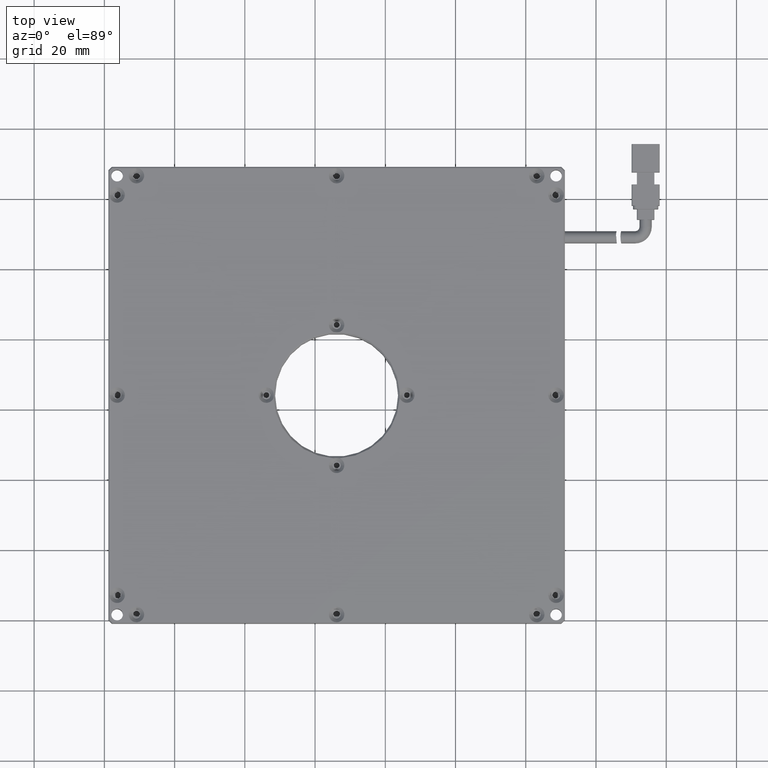
[diagram: clean part render]
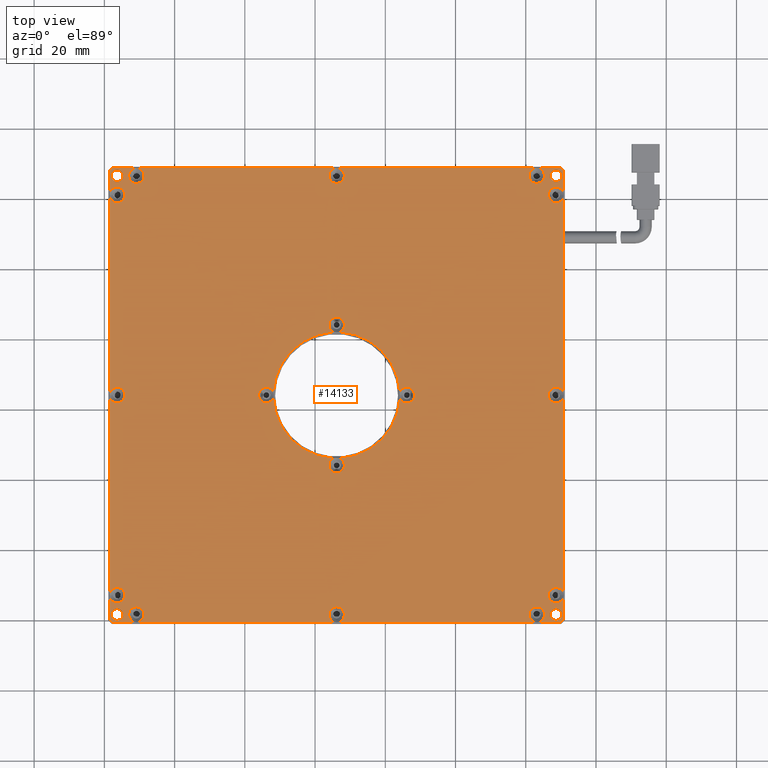
[diagram: same view with one face highlighted and labeled with its STEP entity id]
A machine part, top view. The second image highlights one B-rep face of the part: STEP entity #14133.
In plain terms, the highlighted planar face has unit normal (0, 0, -1).
Its self-contained STEP definition (entity closure, byte-faithful):
#44 = CARTESIAN_POINT ( 'NONE',  ( 46.12907407407409700, 24.05944444444465400, 6.000000000021374000 ) ) ;
#73 = CARTESIAN_POINT ( 'NONE',  ( 90.82907407407410000, 89.05944444444446600, 6.000000000000000000 ) ) ;
#131 = DIRECTION ( 'NONE',  ( 1.000000000000000000, 0.0000000000000000000, 0.0000000000000000000 ) ) ;
#195 = CARTESIAN_POINT ( 'NONE',  ( 26.99830304270746200, 42.03844444444838000, 5.999999999985517400 ) ) ;
#212 = ORIENTED_EDGE ( 'NONE', *, *, #18257, .F. ) ;
#327 = AXIS2_PLACEMENT_3D ( 'NONE', #15321, #12218, #4466 ) ;
#341 = CARTESIAN_POINT ( 'NONE',  ( 86.97907407407410600, -38.44055555555552700, 6.000000000000000000 ) ) ;
#402 = CIRCLE ( 'NONE', #10309, 2.199999999957083400 ) ;
#439 = CARTESIAN_POINT ( 'NONE',  ( 48.32907407412666600, 24.05944444444465400, 6.000000000021374000 ) ) ;
#515 = LINE ( 'NONE', #3141, #3237 ) ;
#592 = CARTESIAN_POINT ( 'NONE',  ( -36.37092592592590300, 81.05944444444446600, 5.999999999964530600 ) ) ;
#664 = AXIS2_PLACEMENT_3D ( 'NONE', #1958, #17604, #13360 ) ;
#676 = VERTEX_POINT ( 'NONE', #5103 ) ;
#763 = CARTESIAN_POINT ( 'NONE',  ( -30.87092592592590600, 88.75944444438516700, 6.000000000021374000 ) ) ;
#767 = DIRECTION ( 'NONE',  ( 0.0000000000000000000, -0.0000000000000000000, 1.000000000000000000 ) ) ;
#798 = FACE_BOUND ( 'NONE', #7709, .T. ) ;
#878 = VERTEX_POINT ( 'NONE', #10504 ) ;
#907 = DIRECTION ( 'NONE',  ( 1.000000000000000000, 0.0000000000000000000, 0.0000000000000000000 ) ) ;
#921 = DIRECTION ( 'NONE',  ( 0.0000000000000000000, -1.000000000000000000, 0.0000000000000000000 ) ) ;
#984 = EDGE_CURVE ( 'NONE', #11099, #12350, #14890, .T. ) ;
#1033 = ORIENTED_EDGE ( 'NONE', *, *, #11992, .T. ) ;
#1051 = VERTEX_POINT ( 'NONE', #14354 ) ;
#1139 = DIRECTION ( 'NONE',  ( 1.000000000000000000, 0.0000000000000000000, 0.0000000000000000000 ) ) ;
#1146 = EDGE_CURVE ( 'NONE', #19698, #13522, #402, .T. ) ;
#1160 = CIRCLE ( 'NONE', #13732, 2.200000000013913000 ) ;
#1288 = DIRECTION ( 'NONE',  ( 0.0000000000000000000, 0.0000000000000000000, -1.000000000000000000 ) ) ;
#1408 = DIRECTION ( 'NONE',  ( 0.0000000000000000000, -0.0000000000000000000, 1.000000000000000000 ) ) ;
#1422 = EDGE_CURVE ( 'NONE', #2665, #8212, #10679, .T. ) ;
#1428 = DIRECTION ( 'NONE',  ( 0.0000000000000000000, 0.0000000000000000000, -1.000000000000000000 ) ) ;
#1461 = VERTEX_POINT ( 'NONE', #6990 ) ;
#1539 = CARTESIAN_POINT ( 'NONE',  ( -38.87092592592590300, 89.05944444444446600, 6.000000000000000000 ) ) ;
#1558 = CARTESIAN_POINT ( 'NONE',  ( 8.150074074061535600, 23.19021547579281500, 6.000000000020566700 ) ) ;
#1577 = DIRECTION ( 'NONE',  ( 0.0000000000000000000, -0.0000000000000000000, 1.000000000000000000 ) ) ;
#1721 = CIRCLE ( 'NONE', #16930, 2.199999999957055900 ) ;
#1744 = DIRECTION ( 'NONE',  ( 0.0000000000000000000, 0.0000000000000000000, -1.000000000000000000 ) ) ;
#1793 = EDGE_CURVE ( 'NONE', #16733, #878, #1160, .T. ) ;
#1857 = VECTOR ( 'NONE', #19759, 1000.000000000000000 ) ;
#1958 = CARTESIAN_POINT ( 'NONE',  ( -36.37092592592590300, -32.94055555555552700, 5.999999999964530600 ) ) ;
#2014 = EDGE_LOOP ( 'NONE', ( #2203, #8863 ) ) ;
#2072 = CARTESIAN_POINT ( 'NONE',  ( -37.74666185721397900, 88.75944444444446900, 6.000000000000000000 ) ) ;
#2102 = DIRECTION ( 'NONE',  ( 1.000000000000000000, 0.0000000000000000000, 0.0000000000000000000 ) ) ;
#2104 = EDGE_CURVE ( 'NONE', #1051, #19698, #13082, .T. ) ;
#2127 = CIRCLE ( 'NONE', #3018, 2.199999999957069600 ) ;
#2203 = ORIENTED_EDGE ( 'NONE', *, *, #2823, .F. ) ;
#2205 = VERTEX_POINT ( 'NONE', #3459 ) ;
#2225 = DIRECTION ( 'NONE',  ( 0.0000000000000000000, -1.000000000000000000, 0.0000000000000000000 ) ) ;
#2236 = CARTESIAN_POINT ( 'NONE',  ( 26.12907407407409700, 88.75944444440153800, 5.999999999964530600 ) ) ;
#2304 = CARTESIAN_POINT ( 'NONE',  ( 85.32907407410438300, -38.44055555555553400, 6.000000000078217400 ) ) ;
#2315 = CARTESIAN_POINT ( 'NONE',  ( 26.12907407407409700, -38.44055555555552700, 5.999999999964530600 ) ) ;
#2348 = EDGE_CURVE ( 'NONE', #17894, #3020, #8909, .T. ) ;
#2350 = ORIENTED_EDGE ( 'NONE', *, *, #14489, .F. ) ;
#2425 = CARTESIAN_POINT ( 'NONE',  ( 26.12907407407409700, 24.05944444444445900, 6.000000000000005300 ) ) ;
#2451 = DIRECTION ( 'NONE',  ( 1.000000000000000000, 0.0000000000000000000, 0.0000000000000000000 ) ) ;
#2505 = EDGE_CURVE ( 'NONE', #17593, #5359, #6711, .T. ) ;
#2534 = DIRECTION ( 'NONE',  ( 1.000000000000000000, 0.0000000000000000000, 0.0000000000000000000 ) ) ;
#2557 = AXIS2_PLACEMENT_3D ( 'NONE', #18249, #15110, #5783 ) ;
#2605 = VERTEX_POINT ( 'NONE', #439 ) ;
#2637 = CARTESIAN_POINT ( 'NONE',  ( 83.12907407407409700, 86.55944444444446600, 6.000000000078217400 ) ) ;
#2638 = CIRCLE ( 'NONE', #2557, 2.199999999940693800 ) ;
#2651 = AXIS2_PLACEMENT_3D ( 'NONE', #14332, #9551, #15849 ) ;
#2665 = VERTEX_POINT ( 'NONE', #5685 ) ;
#2823 = EDGE_CURVE ( 'NONE', #4219, #18227, #7433, .T. ) ;
#2827 = AXIS2_PLACEMENT_3D ( 'NONE', #8787, #19771, #15285 ) ;
#2923 = EDGE_CURVE ( 'NONE', #10516, #9335, #5014, .T. ) ;
#2931 = CIRCLE ( 'NONE', #19161, 2.199999999957055900 ) ;
#2982 = CARTESIAN_POINT ( 'NONE',  ( 6.129074074074106100, 24.05944444444440600, 6.000000000021374000 ) ) ;
#3011 = ORIENTED_EDGE ( 'NONE', *, *, #18324, .T. ) ;
#3018 = AXIS2_PLACEMENT_3D ( 'NONE', #17781, #8352, #16210 ) ;
#3020 = VERTEX_POINT ( 'NONE', #8503 ) ;
#3059 = CARTESIAN_POINT ( 'NONE',  ( 6.129074074074106100, 24.05944444444440600, 6.000000000021374000 ) ) ;
#3068 = DIRECTION ( 'NONE',  ( 1.000000000000000000, 0.0000000000000000000, 0.0000000000000000000 ) ) ;
#3070 = ORIENTED_EDGE ( 'NONE', *, *, #17807, .T. ) ;
#3110 = VERTEX_POINT ( 'NONE', #3796 ) ;
#3141 = CARTESIAN_POINT ( 'NONE',  ( -38.57092592592590600, 89.05944444444446600, 6.000000000000000000 ) ) ;
#3145 = CARTESIAN_POINT ( 'NONE',  ( 90.00481000536221600, 88.75944444444446900, 6.000000000000000000 ) ) ;
#3237 = VECTOR ( 'NONE', #14264, 1000.000000000000000 ) ;
#3292 = CARTESIAN_POINT ( 'NONE',  ( -38.57092592592590600, -39.81629148684361800, 6.000000000000000000 ) ) ;
#3434 = DIRECTION ( 'NONE',  ( 0.0000000000000000000, -0.0000000000000000000, 1.000000000000000000 ) ) ;
#3444 = VERTEX_POINT ( 'NONE', #20008 ) ;
#3459 = CARTESIAN_POINT ( 'NONE',  ( 86.42907407411702500, -32.94055555555552700, 6.000000000021374000 ) ) ;
#3483 = AXIS2_PLACEMENT_3D ( 'NONE', #2315, #11662, #10269 ) ;
#3493 = ORIENTED_EDGE ( 'NONE', *, *, #17810, .F. ) ;
#3508 = FACE_BOUND ( 'NONE', #6188, .T. ) ;
#3539 = CARTESIAN_POINT ( 'NONE',  ( -30.87092592592590600, -36.24055555561483300, 6.000000000021374000 ) ) ;
#3615 = CARTESIAN_POINT ( 'NONE',  ( 88.62907407407409700, -38.44055555555552700, 6.000000000000000000 ) ) ;
#3620 = ORIENTED_EDGE ( 'NONE', *, *, #10392, .T. ) ;
#3689 = VECTOR ( 'NONE', #9084, 1000.000000000000100 ) ;
#3758 = CIRCLE ( 'NONE', #9826, 2.199999999940700900 ) ;
#3795 = DIRECTION ( 'NONE',  ( 1.000000000000000000, 0.0000000000000000000, 0.0000000000000000000 ) ) ;
#3796 = CARTESIAN_POINT ( 'NONE',  ( 80.92907407404379700, 86.55944444444446600, 6.000000000078217400 ) ) ;
#3818 = ORIENTED_EDGE ( 'NONE', *, *, #20177, .F. ) ;
#3886 = CARTESIAN_POINT ( 'NONE',  ( -37.74666185721396500, -40.64055555555553700, 6.000000000000000000 ) ) ;
#3927 = VERTEX_POINT ( 'NONE', #15563 ) ;
#4000 = EDGE_CURVE ( 'NONE', #14306, #2205, #6378, .T. ) ;
#4002 = FACE_BOUND ( 'NONE', #6930, .T. ) ;
#4037 = VERTEX_POINT ( 'NONE', #17189 ) ;
#4154 = AXIS2_PLACEMENT_3D ( 'NONE', #14478, #16115, #8263 ) ;
#4178 = EDGE_CURVE ( 'NONE', #8212, #19584, #2931, .T. ) ;
#4219 = VERTEX_POINT ( 'NONE', #2304 ) ;
#4224 = CARTESIAN_POINT ( 'NONE',  ( -30.87092592592590600, -38.44055555555553400, 6.000000000021374000 ) ) ;
#4438 = CIRCLE ( 'NONE', #13821, 2.199999999957055900 ) ;
#4466 = DIRECTION ( 'NONE',  ( 1.000000000000000000, 0.0000000000000000000, 0.0000000000000000000 ) ) ;
#4468 = DIRECTION ( 'NONE',  ( 0.0000000000000000000, 4.928191693466765400E-017, 1.000000000000000000 ) ) ;
#4477 = DIRECTION ( 'NONE',  ( 0.0000000000000000000, -1.000000000000000000, 0.0000000000000000000 ) ) ;
#4509 = AXIS2_PLACEMENT_3D ( 'NONE', #10056, #8633, #907 ) ;
#4542 = VERTEX_POINT ( 'NONE', #13196 ) ;
#4544 = DIRECTION ( 'NONE',  ( 0.0000000000000000000, 0.0000000000000000000, -1.000000000000000000 ) ) ;
#4612 = DIRECTION ( 'NONE',  ( 0.0000000000000000000, -1.000000000000000000, 0.0000000000000000000 ) ) ;
#4657 = EDGE_CURVE ( 'NONE', #11835, #14467, #2638, .T. ) ;
#4780 = AXIS2_PLACEMENT_3D ( 'NONE', #14043, #18821, #131 ) ;
#4785 = ORIENTED_EDGE ( 'NONE', *, *, #5810, .T. ) ;
#4789 = AXIS2_PLACEMENT_3D ( 'NONE', #592, #19493, #11606 ) ;
#4808 = CARTESIAN_POINT ( 'NONE',  ( 90.82907407407410000, -39.81629148684358200, 6.000000000000001800 ) ) ;
#4829 = ORIENTED_EDGE ( 'NONE', *, *, #13692, .F. ) ;
#4842 = CIRCLE ( 'NONE', #15008, 1.649999999999991700 ) ;
#4884 = ORIENTED_EDGE ( 'NONE', *, *, #13584, .T. ) ;
#4986 = FACE_BOUND ( 'NONE', #2014, .T. ) ;
#5014 = CIRCLE ( 'NONE', #13382, 2.199999999975249300 ) ;
#5038 = ORIENTED_EDGE ( 'NONE', *, *, #14768, .T. ) ;
#5045 = CARTESIAN_POINT ( 'NONE',  ( -36.37092592592590300, -38.44055555555552700, 6.000000000000000000 ) ) ;
#5080 = EDGE_CURVE ( 'NONE', #3927, #19841, #16072, .T. ) ;
#5103 = CARTESIAN_POINT ( 'NONE',  ( -38.57092592593981800, 24.05944444444447300, 5.999999999964530600 ) ) ;
#5177 = CARTESIAN_POINT ( 'NONE',  ( 6.129074074074106100, 26.25944444441965300, 6.000000000021374000 ) ) ;
#5302 = EDGE_LOOP ( 'NONE', ( #14071, #19507 ) ) ;
#5315 = DIRECTION ( 'NONE',  ( 0.0000000000000000000, -0.0000000000000000000, 1.000000000000000000 ) ) ;
#5359 = VERTEX_POINT ( 'NONE', #15504 ) ;
#5380 = ORIENTED_EDGE ( 'NONE', *, *, #15955, .T. ) ;
#5594 = EDGE_CURVE ( 'NONE', #14889, #13468, #10641, .T. ) ;
#5685 = CARTESIAN_POINT ( 'NONE',  ( 44.10807407406386500, 24.92867341319313800, 6.000000000002483300 ) ) ;
#5704 = DIRECTION ( 'NONE',  ( 0.0000000000000000000, -0.0000000000000000000, 1.000000000000000000 ) ) ;
#5734 = ORIENTED_EDGE ( 'NONE', *, *, #2505, .F. ) ;
#5737 = CIRCLE ( 'NONE', #10861, 2.199999999975249300 ) ;
#5744 = CARTESIAN_POINT ( 'NONE',  ( 83.12907407407409700, -38.44055555555553400, 6.000000000078217400 ) ) ;
#5754 = AXIS2_PLACEMENT_3D ( 'NONE', #8257, #14347, #15980 ) ;
#5783 = DIRECTION ( 'NONE',  ( 0.0000000000000000000, -1.000000000000000000, 0.0000000000000000000 ) ) ;
#5795 = CARTESIAN_POINT ( 'NONE',  ( -30.87092592592590600, 86.55944444444446600, 6.000000000021374000 ) ) ;
#5804 = ORIENTED_EDGE ( 'NONE', *, *, #20037, .F. ) ;
#5810 = EDGE_CURVE ( 'NONE', #14725, #14889, #16247, .T. ) ;
#5811 = DIRECTION ( 'NONE',  ( 0.0000000000000000000, -0.0000000000000000000, 1.000000000000000000 ) ) ;
#5831 = ORIENTED_EDGE ( 'NONE', *, *, #1146, .F. ) ;
#5843 = CARTESIAN_POINT ( 'NONE',  ( -34.72092592592591100, 86.55944444444446600, 6.000000000000000000 ) ) ;
#5910 = CIRCLE ( 'NONE', #4509, 2.200000000052562600 ) ;
#5913 = VERTEX_POINT ( 'NONE', #341 ) ;
#5921 = DIRECTION ( 'NONE',  ( 0.0000000000000000000, -0.0000000000000000000, 1.000000000000000000 ) ) ;
#5931 = VERTEX_POINT ( 'NONE', #9791 ) ;
#5932 = CIRCLE ( 'NONE', #19881, 1.649999999999984800 ) ;
#5948 = ORIENTED_EDGE ( 'NONE', *, *, #1793, .F. ) ;
#5965 = EDGE_LOOP ( 'NONE', ( #14158, #6790 ) ) ;
#5971 = FACE_BOUND ( 'NONE', #16999, .T. ) ;
#5972 = CIRCLE ( 'NONE', #17210, 2.199999999957069600 ) ;
#6029 = DIRECTION ( 'NONE',  ( 1.000000000000000000, 0.0000000000000000000, 0.0000000000000000000 ) ) ;
#6035 = CARTESIAN_POINT ( 'NONE',  ( 88.62907407407409700, 24.05944444444447300, 6.000000000021374000 ) ) ;
#6085 = ORIENTED_EDGE ( 'NONE', *, *, #15269, .F. ) ;
#6135 = DIRECTION ( 'NONE',  ( 0.0000000000000000000, 0.0000000000000000000, -1.000000000000000000 ) ) ;
#6188 = EDGE_LOOP ( 'NONE', ( #212, #13272 ) ) ;
#6218 = AXIS2_PLACEMENT_3D ( 'NONE', #13885, #4544, #12364 ) ;
#6251 = ORIENTED_EDGE ( 'NONE', *, *, #5080, .T. ) ;
#6355 = AXIS2_PLACEMENT_3D ( 'NONE', #44, #1577, #12368 ) ;
#6359 = EDGE_CURVE ( 'NONE', #14326, #7037, #13846, .T. ) ;
#6378 = CIRCLE ( 'NONE', #4780, 2.199999999957069600 ) ;
#6415 = VERTEX_POINT ( 'NONE', #3292 ) ;
#6437 = ORIENTED_EDGE ( 'NONE', *, *, #16340, .F. ) ;
#6438 = CARTESIAN_POINT ( 'NONE',  ( -38.57092592592590600, 87.93518037573255700, 6.000000000000000000 ) ) ;
#6515 = DIRECTION ( 'NONE',  ( 1.000000000000000000, -0.0000000000000000000, 0.0000000000000000000 ) ) ;
#6623 = EDGE_CURVE ( 'NONE', #17911, #14725, #17496, .T. ) ;
#6649 = CIRCLE ( 'NONE', #3483, 2.199999999957069600 ) ;
#6693 = ORIENTED_EDGE ( 'NONE', *, *, #15368, .F. ) ;
#6711 = CIRCLE ( 'NONE', #13893, 2.200000000013913000 ) ;
#6790 = ORIENTED_EDGE ( 'NONE', *, *, #2348, .F. ) ;
#6865 = CARTESIAN_POINT ( 'NONE',  ( -38.02092592592589400, -38.44055555555552700, 6.000000000000000000 ) ) ;
#6887 = VERTEX_POINT ( 'NONE', #19784 ) ;
#6888 = LINE ( 'NONE', #3886, #8825 ) ;
#6920 = DIRECTION ( 'NONE',  ( 1.000000000000000000, 0.0000000000000000000, 0.0000000000000000000 ) ) ;
#6930 = EDGE_LOOP ( 'NONE', ( #3493, #11212, #16612, #13558, #3818, #12340, #8751, #17455, #16459, #2350, #6085, #15625, #5831, #10424, #13331 ) ) ;
#6962 = CARTESIAN_POINT ( 'NONE',  ( 28.32907407403116600, 44.05944444444446600, 5.999999999964530600 ) ) ;
#6990 = CARTESIAN_POINT ( 'NONE',  ( 26.12907407407409700, -40.64055555551259900, 5.999999999964530600 ) ) ;
#6991 = CIRCLE ( 'NONE', #5754, 2.199999999940700900 ) ;
#7037 = VERTEX_POINT ( 'NONE', #2072 ) ;
#7070 = CIRCLE ( 'NONE', #2827, 18.00000000000000400 ) ;
#7074 = DIRECTION ( 'NONE',  ( 0.0000000000000000000, 0.0000000000000000000, -1.000000000000000000 ) ) ;
#7179 = AXIS2_PLACEMENT_3D ( 'NONE', #2637, #18534, #8896 ) ;
#7224 = VERTEX_POINT ( 'NONE', #6438 ) ;
#7227 = AXIS2_PLACEMENT_3D ( 'NONE', #10462, #18277, #16227 ) ;
#7303 = DIRECTION ( 'NONE',  ( 1.000000000000000000, 0.0000000000000000000, 0.0000000000000000000 ) ) ;
#7335 = CARTESIAN_POINT ( 'NONE',  ( 44.10807407406387900, 23.19021547569619900, 6.000000000002481600 ) ) ;
#7370 = CIRCLE ( 'NONE', #10104, 2.200000000030288800 ) ;
#7432 = CARTESIAN_POINT ( 'NONE',  ( -36.37092592592590300, 81.05944444444446600, 5.999999999964530600 ) ) ;
#7433 = CIRCLE ( 'NONE', #12324, 2.200000000030288800 ) ;
#7487 = CARTESIAN_POINT ( 'NONE',  ( 86.97907407407410600, 86.55944444444446600, 6.000000000000000000 ) ) ;
#7490 = DIRECTION ( 'NONE',  ( 0.0000000000000000000, -0.0000000000000000000, 1.000000000000000000 ) ) ;
#7512 = CARTESIAN_POINT ( 'NONE',  ( 26.12907407407409700, 24.05944444444445900, 6.000000000000001800 ) ) ;
#7545 = DIRECTION ( 'NONE',  ( 0.0000000000000000000, 4.928191693248779800E-017, 1.000000000000000000 ) ) ;
#7580 = AXIS2_PLACEMENT_3D ( 'NONE', #18563, #9193, #19971 ) ;
#7613 = CARTESIAN_POINT ( 'NONE',  ( -36.37092592592590300, 86.55944444444446600, 6.000000000000000000 ) ) ;
#7621 = CARTESIAN_POINT ( 'NONE',  ( 90.82907407407410000, -39.81629148684358900, 6.000000000000000000 ) ) ;
#7709 = EDGE_LOOP ( 'NONE', ( #4829, #6437 ) ) ;
#7743 = VECTOR ( 'NONE', #18725, 1000.000000000000000 ) ;
#7816 = EDGE_LOOP ( 'NONE', ( #5804, #5948 ) ) ;
#7825 = DIRECTION ( 'NONE',  ( 0.0000000000000000000, -1.000000000000000000, 0.0000000000000000000 ) ) ;
#7926 = EDGE_CURVE ( 'NONE', #12350, #11099, #12274, .T. ) ;
#8081 = CIRCLE ( 'NONE', #6218, 1.649999999999984800 ) ;
#8143 = FACE_BOUND ( 'NONE', #18492, .T. ) ;
#8163 = CARTESIAN_POINT ( 'NONE',  ( 90.82907407403116900, -32.94055555555552700, 6.000000000021374000 ) ) ;
#8212 = VERTEX_POINT ( 'NONE', #195 ) ;
#8225 = EDGE_LOOP ( 'NONE', ( #3070, #3620 ) ) ;
#8257 = CARTESIAN_POINT ( 'NONE',  ( -30.87092592592590600, -38.44055555555553400, 6.000000000021374000 ) ) ;
#8263 = DIRECTION ( 'NONE',  ( 1.000000000000000000, 0.0000000000000000000, 0.0000000000000000000 ) ) ;
#8313 = DIRECTION ( 'NONE',  ( 0.0000000000000000000, -0.0000000000000000000, 1.000000000000000000 ) ) ;
#8352 = DIRECTION ( 'NONE',  ( 0.0000000000000000000, -0.0000000000000000000, 1.000000000000000000 ) ) ;
#8387 = CARTESIAN_POINT ( 'NONE',  ( -36.37092592592590300, -32.94055555555552700, 5.999999999964530600 ) ) ;
#8450 = CIRCLE ( 'NONE', #664, 2.200000000013913000 ) ;
#8466 = AXIS2_PLACEMENT_3D ( 'NONE', #9356, #4468, #14014 ) ;
#8503 = CARTESIAN_POINT ( 'NONE',  ( 90.82907407403116900, 24.05944444444447300, 6.000000000021374000 ) ) ;
#8586 = AXIS2_PLACEMENT_3D ( 'NONE', #12048, #7490, #7303 ) ;
#8633 = DIRECTION ( 'NONE',  ( 0.0000000000000000000, -0.0000000000000000000, 1.000000000000000000 ) ) ;
#8635 = FACE_BOUND ( 'NONE', #8225, .T. ) ;
#8674 = DIRECTION ( 'NONE',  ( 1.000000000000000000, 0.0000000000000000000, 0.0000000000000000000 ) ) ;
#8704 = EDGE_CURVE ( 'NONE', #7037, #7224, #16145, .T. ) ;
#8751 = ORIENTED_EDGE ( 'NONE', *, *, #19163, .F. ) ;
#8787 = CARTESIAN_POINT ( 'NONE',  ( 26.12907407407409700, 24.05944444444445900, 5.999999999999998200 ) ) ;
#8805 = DIRECTION ( 'NONE',  ( 1.000000000000000000, 0.0000000000000000000, 0.0000000000000000000 ) ) ;
#8825 = VECTOR ( 'NONE', #19408, 999.9999999999998900 ) ;
#8863 = ORIENTED_EDGE ( 'NONE', *, *, #16861, .F. ) ;
#8896 = DIRECTION ( 'NONE',  ( 1.000000000000000000, 0.0000000000000000000, 0.0000000000000000000 ) ) ;
#8909 = CIRCLE ( 'NONE', #10454, 2.199999999957069600 ) ;
#9060 = DIRECTION ( 'NONE',  ( 1.000000000000000000, 0.0000000000000000000, 0.0000000000000000000 ) ) ;
#9084 = DIRECTION ( 'NONE',  ( -0.7071067811865483500, -0.7071067811865465700, -0.0000000000000000000 ) ) ;
#9109 = DIRECTION ( 'NONE',  ( 0.0000000000000000000, -0.0000000000000000000, 1.000000000000000000 ) ) ;
#9138 = CARTESIAN_POINT ( 'NONE',  ( 90.82907407407410000, 87.93518037573258500, 6.000000000000000000 ) ) ;
#9193 = DIRECTION ( 'NONE',  ( 0.0000000000000000000, 4.928191693466765400E-017, 1.000000000000000000 ) ) ;
#9275 = AXIS2_PLACEMENT_3D ( 'NONE', #2425, #12030, #2534 ) ;
#9335 = VERTEX_POINT ( 'NONE', #10822 ) ;
#9356 = CARTESIAN_POINT ( 'NONE',  ( 26.12907407407409700, 86.55944444444446600, 5.999999999964530600 ) ) ;
#9384 = CIRCLE ( 'NONE', #6355, 2.200000000052562600 ) ;
#9411 = CIRCLE ( 'NONE', #12422, 18.00000000000000400 ) ;
#9416 = EDGE_LOOP ( 'NONE', ( #3011, #1033 ) ) ;
#9551 = DIRECTION ( 'NONE',  ( 0.0000000000000000000, -0.0000000000000000000, 1.000000000000000000 ) ) ;
#9602 = ORIENTED_EDGE ( 'NONE', *, *, #12017, .F. ) ;
#9614 = FACE_BOUND ( 'NONE', #13900, .T. ) ;
#9694 = VERTEX_POINT ( 'NONE', #13720 ) ;
#9791 = CARTESIAN_POINT ( 'NONE',  ( 8.150074074061535600, 24.92867341309596400, 6.000000000020564900 ) ) ;
#9820 = VERTEX_POINT ( 'NONE', #13868 ) ;
#9826 = AXIS2_PLACEMENT_3D ( 'NONE', #4224, #13617, #921 ) ;
#9828 = ORIENTED_EDGE ( 'NONE', *, *, #6623, .T. ) ;
#9832 = CARTESIAN_POINT ( 'NONE',  ( -38.87092592592590300, -40.64055555555553700, 6.000000000000000000 ) ) ;
#10050 = CARTESIAN_POINT ( 'NONE',  ( 26.12907407407408300, 4.059444444444455500, 5.999999999964530600 ) ) ;
#10056 = CARTESIAN_POINT ( 'NONE',  ( 46.12907407407409700, 24.05944444444465400, 6.000000000021374000 ) ) ;
#10086 = FACE_BOUND ( 'NONE', #17383, .T. ) ;
#10104 = AXIS2_PLACEMENT_3D ( 'NONE', #11840, #5315, #3795 ) ;
#10126 = DIRECTION ( 'NONE',  ( 1.000000000000000000, 0.0000000000000000000, 0.0000000000000000000 ) ) ;
#10197 = EDGE_CURVE ( 'NONE', #13522, #18771, #7070, .T. ) ;
#10231 = DIRECTION ( 'NONE',  ( 0.0000000000000000000, -0.0000000000000000000, 1.000000000000000000 ) ) ;
#10269 = DIRECTION ( 'NONE',  ( 0.0000000000000000000, -1.000000000000000000, 0.0000000000000000000 ) ) ;
#10309 = AXIS2_PLACEMENT_3D ( 'NONE', #11467, #16190, #6920 ) ;
#10310 = EDGE_LOOP ( 'NONE', ( #6251, #20274 ) ) ;
#10315 = FACE_OUTER_BOUND ( 'NONE', #16828, .T. ) ;
#10392 = EDGE_CURVE ( 'NONE', #17613, #14167, #4842, .T. ) ;
#10424 = ORIENTED_EDGE ( 'NONE', *, *, #2104, .F. ) ;
#10454 = AXIS2_PLACEMENT_3D ( 'NONE', #6035, #20244, #18641 ) ;
#10462 = CARTESIAN_POINT ( 'NONE',  ( 26.12907407407409700, 86.55944444444446600, 5.999999999964530600 ) ) ;
#10466 = AXIS2_PLACEMENT_3D ( 'NONE', #7613, #6135, #10664 ) ;
#10504 = CARTESIAN_POINT ( 'NONE',  ( -34.17092592591198800, 81.05944444444446600, 5.999999999964530600 ) ) ;
#10516 = VERTEX_POINT ( 'NONE', #5177 ) ;
#10539 = DIRECTION ( 'NONE',  ( 0.0000000000000000000, -0.0000000000000000000, 1.000000000000000000 ) ) ;
#10557 = ORIENTED_EDGE ( 'NONE', *, *, #18086, .F. ) ;
#10588 = CIRCLE ( 'NONE', #16564, 2.199999999957069600 ) ;
#10617 = CARTESIAN_POINT ( 'NONE',  ( -36.37092592592590300, -38.44055555555552700, 6.000000000000000000 ) ) ;
#10641 = LINE ( 'NONE', #73, #1857 ) ;
#10664 = DIRECTION ( 'NONE',  ( 1.000000000000000000, 0.0000000000000000000, 0.0000000000000000000 ) ) ;
#10667 = DIRECTION ( 'NONE',  ( 1.000000000000000000, 0.0000000000000000000, 0.0000000000000000000 ) ) ;
#10679 = CIRCLE ( 'NONE', #9275, 18.00000000000001400 ) ;
#10732 = ORIENTED_EDGE ( 'NONE', *, *, #16510, .F. ) ;
#10753 = DIRECTION ( 'NONE',  ( 0.0000000000000000000, 0.0000000000000000000, 1.000000000000000000 ) ) ;
#10781 = EDGE_CURVE ( 'NONE', #14467, #11835, #11388, .T. ) ;
#10782 = EDGE_CURVE ( 'NONE', #3110, #15911, #16779, .T. ) ;
#10822 = CARTESIAN_POINT ( 'NONE',  ( 6.129074074074106100, 21.85944444446915500, 6.000000000021374000 ) ) ;
#10861 = AXIS2_PLACEMENT_3D ( 'NONE', #2982, #20273, #4612 ) ;
#10896 = CIRCLE ( 'NONE', #13349, 2.199999999957083400 ) ;
#10944 = DIRECTION ( 'NONE',  ( 0.0000000000000000000, -0.0000000000000000000, 1.000000000000000000 ) ) ;
#11086 = CIRCLE ( 'NONE', #2651, 2.200000000013913000 ) ;
#11095 = ORIENTED_EDGE ( 'NONE', *, *, #5594, .T. ) ;
#11099 = VERTEX_POINT ( 'NONE', #16059 ) ;
#11152 = PLANE ( 'NONE',  #15483 ) ;
#11212 = ORIENTED_EDGE ( 'NONE', *, *, #18317, .F. ) ;
#11382 = DIRECTION ( 'NONE',  ( 0.0000000000000000000, 0.0000000000000000000, -1.000000000000000000 ) ) ;
#11388 = CIRCLE ( 'NONE', #11745, 2.199999999940693800 ) ;
#11467 = CARTESIAN_POINT ( 'NONE',  ( 26.12907407407408300, 4.059444444444455500, 5.999999999964530600 ) ) ;
#11473 = ORIENTED_EDGE ( 'NONE', *, *, #16039, .T. ) ;
#11555 = CIRCLE ( 'NONE', #7580, 2.199999999957069600 ) ;
#11601 = VECTOR ( 'NONE', #15484, 1000.000000000000100 ) ;
#11606 = DIRECTION ( 'NONE',  ( 1.000000000000000000, 0.0000000000000000000, 0.0000000000000000000 ) ) ;
#11662 = DIRECTION ( 'NONE',  ( 0.0000000000000000000, 4.928191693466765400E-017, 1.000000000000000000 ) ) ;
#11715 = EDGE_CURVE ( 'NONE', #18016, #14408, #6991, .T. ) ;
#11745 = AXIS2_PLACEMENT_3D ( 'NONE', #5795, #7545, #4477 ) ;
#11822 = CIRCLE ( 'NONE', #10466, 1.649999999999991700 ) ;
#11835 = VERTEX_POINT ( 'NONE', #17886 ) ;
#11840 = CARTESIAN_POINT ( 'NONE',  ( 83.12907407407409700, 86.55944444444446600, 6.000000000078217400 ) ) ;
#11992 = EDGE_CURVE ( 'NONE', #14586, #18696, #15490, .T. ) ;
#12017 = EDGE_CURVE ( 'NONE', #9820, #1461, #11555, .T. ) ;
#12030 = DIRECTION ( 'NONE',  ( 0.0000000000000000000, -0.0000000000000000000, 1.000000000000000000 ) ) ;
#12034 = FACE_BOUND ( 'NONE', #5302, .T. ) ;
#12048 = CARTESIAN_POINT ( 'NONE',  ( -36.37092592592590300, 24.05944444444447300, 5.999999999964530600 ) ) ;
#12088 = CARTESIAN_POINT ( 'NONE',  ( -38.02092592592589400, 86.55944444444446600, 6.000000000000000000 ) ) ;
#12162 = DIRECTION ( 'NONE',  ( 1.000000000000000000, 0.0000000000000000000, 0.0000000000000000000 ) ) ;
#12218 = DIRECTION ( 'NONE',  ( 0.0000000000000000000, -0.0000000000000000000, 1.000000000000000000 ) ) ;
#12237 = CARTESIAN_POINT ( 'NONE',  ( 90.27907407407407400, -38.44055555555552700, 6.000000000000000000 ) ) ;
#12274 = CIRCLE ( 'NONE', #7227, 2.199999999957069600 ) ;
#12283 = FACE_BOUND ( 'NONE', #20226, .T. ) ;
#12298 = CARTESIAN_POINT ( 'NONE',  ( -38.57092592592590600, 87.93518037573255700, 6.000000000000000000 ) ) ;
#12324 = AXIS2_PLACEMENT_3D ( 'NONE', #5744, #5811, #1139 ) ;
#12340 = ORIENTED_EDGE ( 'NONE', *, *, #16472, .F. ) ;
#12350 = VERTEX_POINT ( 'NONE', #2236 ) ;
#12364 = DIRECTION ( 'NONE',  ( 1.000000000000000000, 0.0000000000000000000, 0.0000000000000000000 ) ) ;
#12368 = DIRECTION ( 'NONE',  ( 1.000000000000000000, 0.0000000000000000000, 0.0000000000000000000 ) ) ;
#12422 = AXIS2_PLACEMENT_3D ( 'NONE', #7512, #10753, #6029 ) ;
#12450 = DIRECTION ( 'NONE',  ( -1.000000000000000000, 0.0000000000000000000, -0.0000000000000000000 ) ) ;
#12512 = FACE_BOUND ( 'NONE', #13020, .T. ) ;
#12596 = CARTESIAN_POINT ( 'NONE',  ( 26.12907407407408300, 4.059444444444455500, 5.999999999964530600 ) ) ;
#12671 = DIRECTION ( 'NONE',  ( 1.000000000000000000, 0.0000000000000000000, 0.0000000000000000000 ) ) ;
#12687 = EDGE_CURVE ( 'NONE', #3020, #17894, #2127, .T. ) ;
#12706 = CARTESIAN_POINT ( 'NONE',  ( 88.62907407407409700, 81.05944444444446600, 6.000000000021374000 ) ) ;
#12800 = EDGE_CURVE ( 'NONE', #3444, #1051, #10896, .T. ) ;
#13015 = VERTEX_POINT ( 'NONE', #12237 ) ;
#13020 = EDGE_LOOP ( 'NONE', ( #5038, #11473 ) ) ;
#13061 = CARTESIAN_POINT ( 'NONE',  ( -30.87092592592590600, -40.64055555549623500, 6.000000000021374000 ) ) ;
#13082 = CIRCLE ( 'NONE', #18200, 2.199999999957083400 ) ;
#13196 = CARTESIAN_POINT ( 'NONE',  ( -34.17092592591198800, 24.05944444444447300, 5.999999999964530600 ) ) ;
#13205 = CARTESIAN_POINT ( 'NONE',  ( -34.17092592591198800, -32.94055555555552700, 5.999999999964530600 ) ) ;
#13272 = ORIENTED_EDGE ( 'NONE', *, *, #11715, .F. ) ;
#13327 = CIRCLE ( 'NONE', #19118, 1.649999999999991700 ) ;
#13331 = ORIENTED_EDGE ( 'NONE', *, *, #12800, .F. ) ;
#13342 = DIRECTION ( 'NONE',  ( 1.000000000000000000, 0.0000000000000000000, 0.0000000000000000000 ) ) ;
#13349 = AXIS2_PLACEMENT_3D ( 'NONE', #10050, #5921, #13342 ) ;
#13360 = DIRECTION ( 'NONE',  ( 1.000000000000000000, 0.0000000000000000000, 0.0000000000000000000 ) ) ;
#13382 = AXIS2_PLACEMENT_3D ( 'NONE', #3059, #15622, #7825 ) ;
#13461 = CIRCLE ( 'NONE', #8586, 2.200000000013913000 ) ;
#13468 = VERTEX_POINT ( 'NONE', #9138 ) ;
#13512 = FACE_BOUND ( 'NONE', #7816, .T. ) ;
#13516 = CARTESIAN_POINT ( 'NONE',  ( 25.25984510544075700, 42.03844444444839500, 5.999999999985519100 ) ) ;
#13522 = VERTEX_POINT ( 'NONE', #13650 ) ;
#13558 = ORIENTED_EDGE ( 'NONE', *, *, #14454, .F. ) ;
#13584 = EDGE_CURVE ( 'NONE', #13468, #14326, #14805, .T. ) ;
#13617 = DIRECTION ( 'NONE',  ( 0.0000000000000000000, 4.928191693248764300E-017, 1.000000000000000000 ) ) ;
#13650 = CARTESIAN_POINT ( 'NONE',  ( 26.99830304270746200, 6.080444444440537700, 5.999999999985513800 ) ) ;
#13692 = EDGE_CURVE ( 'NONE', #4542, #676, #11086, .T. ) ;
#13720 = CARTESIAN_POINT ( 'NONE',  ( 90.82907407403116900, 81.05944444444446600, 6.000000000021374000 ) ) ;
#13732 = AXIS2_PLACEMENT_3D ( 'NONE', #7432, #10539, #2451 ) ;
#13762 = CARTESIAN_POINT ( 'NONE',  ( -34.72092592592591100, -38.44055555555552700, 6.000000000000000000 ) ) ;
#13821 = AXIS2_PLACEMENT_3D ( 'NONE', #15677, #1408, #18470 ) ;
#13846 = LINE ( 'NONE', #17296, #7743 ) ;
#13868 = CARTESIAN_POINT ( 'NONE',  ( 26.12907407407409700, -36.24055555559845500, 5.999999999964530600 ) ) ;
#13885 = CARTESIAN_POINT ( 'NONE',  ( 88.62907407407409700, -38.44055555555552700, 6.000000000000000000 ) ) ;
#13893 = AXIS2_PLACEMENT_3D ( 'NONE', #8387, #8313, #19336 ) ;
#13900 = EDGE_LOOP ( 'NONE', ( #18544, #10732 ) ) ;
#13948 = CARTESIAN_POINT ( 'NONE',  ( 90.00481000536216000, -40.64055555555554400, 5.999999999999999100 ) ) ;
#14014 = DIRECTION ( 'NONE',  ( 0.0000000000000000000, -1.000000000000000000, 0.0000000000000000000 ) ) ;
#14043 = CARTESIAN_POINT ( 'NONE',  ( 88.62907407407409700, -32.94055555555552700, 6.000000000021374000 ) ) ;
#14044 = DIRECTION ( 'NONE',  ( 1.000000000000000000, 0.0000000000000000000, 0.0000000000000000000 ) ) ;
#14062 = DIRECTION ( 'NONE',  ( -0.7071067811865474600, 0.7071067811865474600, -0.0000000000000000000 ) ) ;
#14071 = ORIENTED_EDGE ( 'NONE', *, *, #984, .F. ) ;
#14133 = ADVANCED_FACE ( 'NONE', ( #12283, #12034, #18647, #10086, #14495, #9614, #4986, #8143, #3508, #5971, #798, #13512, #4002, #10315, #19666, #16702, #12512, #8635 ), #11152, .F. ) ;
#14158 = ORIENTED_EDGE ( 'NONE', *, *, #12687, .F. ) ;
#14167 = VERTEX_POINT ( 'NONE', #13762 ) ;
#14183 = CIRCLE ( 'NONE', #19069, 2.199999999957069600 ) ;
#14264 = DIRECTION ( 'NONE',  ( -0.0000000000000000000, -1.000000000000000000, -0.0000000000000000000 ) ) ;
#14306 = VERTEX_POINT ( 'NONE', #8163 ) ;
#14326 = VERTEX_POINT ( 'NONE', #16079 ) ;
#14332 = CARTESIAN_POINT ( 'NONE',  ( -36.37092592592590300, 24.05944444444447300, 5.999999999964530600 ) ) ;
#14347 = DIRECTION ( 'NONE',  ( 0.0000000000000000000, 4.928191693248764300E-017, 1.000000000000000000 ) ) ;
#14354 = CARTESIAN_POINT ( 'NONE',  ( 23.92907407411700000, 4.059444444444455500, 5.999999999964530600 ) ) ;
#14408 = VERTEX_POINT ( 'NONE', #13061 ) ;
#14454 = EDGE_CURVE ( 'NONE', #5931, #10516, #16661, .T. ) ;
#14467 = VERTEX_POINT ( 'NONE', #763 ) ;
#14478 = CARTESIAN_POINT ( 'NONE',  ( 88.62907407407409700, 86.55944444444446600, 6.000000000000000000 ) ) ;
#14481 = EDGE_CURVE ( 'NONE', #15911, #3110, #7370, .T. ) ;
#14489 = EDGE_CURVE ( 'NONE', #2605, #2665, #5910, .T. ) ;
#14495 = FACE_BOUND ( 'NONE', #5965, .T. ) ;
#14586 = VERTEX_POINT ( 'NONE', #12088 ) ;
#14721 = ORIENTED_EDGE ( 'NONE', *, *, #6359, .T. ) ;
#14725 = VERTEX_POINT ( 'NONE', #13948 ) ;
#14768 = EDGE_CURVE ( 'NONE', #13015, #5913, #8081, .T. ) ;
#14805 = LINE ( 'NONE', #3145, #19178 ) ;
#14889 = VERTEX_POINT ( 'NONE', #4808 ) ;
#14890 = CIRCLE ( 'NONE', #8466, 2.199999999957069600 ) ;
#15008 = AXIS2_PLACEMENT_3D ( 'NONE', #5045, #1744, #12671 ) ;
#15110 = DIRECTION ( 'NONE',  ( 0.0000000000000000000, 4.928191693248779800E-017, 1.000000000000000000 ) ) ;
#15229 = AXIS2_PLACEMENT_3D ( 'NONE', #19580, #7074, #17918 ) ;
#15268 = EDGE_LOOP ( 'NONE', ( #16299, #15947 ) ) ;
#15269 = EDGE_CURVE ( 'NONE', #18771, #2605, #9384, .T. ) ;
#15285 = DIRECTION ( 'NONE',  ( 1.000000000000000000, 0.0000000000000000000, 0.0000000000000000000 ) ) ;
#15321 = CARTESIAN_POINT ( 'NONE',  ( 83.12907407407409700, -38.44055555555553400, 6.000000000078217400 ) ) ;
#15368 = EDGE_CURVE ( 'NONE', #9694, #4037, #10588, .T. ) ;
#15483 = AXIS2_PLACEMENT_3D ( 'NONE', #1539, #17322, #12450 ) ;
#15484 = DIRECTION ( 'NONE',  ( 0.7071067811865474600, 0.7071067811865474600, -0.0000000000000000000 ) ) ;
#15490 = CIRCLE ( 'NONE', #19515, 1.649999999999991700 ) ;
#15504 = CARTESIAN_POINT ( 'NONE',  ( -38.57092592593981800, -32.94055555555552700, 5.999999999964530600 ) ) ;
#15563 = CARTESIAN_POINT ( 'NONE',  ( 90.27907407407407400, 86.55944444444446600, 6.000000000000000000 ) ) ;
#15622 = DIRECTION ( 'NONE',  ( 0.0000000000000000000, 4.928191693171372200E-017, 1.000000000000000000 ) ) ;
#15625 = ORIENTED_EDGE ( 'NONE', *, *, #10197, .F. ) ;
#15659 = EDGE_CURVE ( 'NONE', #4037, #9694, #5972, .T. ) ;
#15677 = CARTESIAN_POINT ( 'NONE',  ( 26.12907407407411100, 44.05944444444446600, 5.999999999964530600 ) ) ;
#15697 = CARTESIAN_POINT ( 'NONE',  ( -37.74666185721395800, -40.64055555555553700, 6.000000000000000000 ) ) ;
#15844 = CARTESIAN_POINT ( 'NONE',  ( 85.32907407410438300, 86.55944444444446600, 6.000000000078217400 ) ) ;
#15849 = DIRECTION ( 'NONE',  ( 1.000000000000000000, 0.0000000000000000000, 0.0000000000000000000 ) ) ;
#15859 = CIRCLE ( 'NONE', #327, 2.200000000030288800 ) ;
#15911 = VERTEX_POINT ( 'NONE', #15844 ) ;
#15947 = ORIENTED_EDGE ( 'NONE', *, *, #10782, .F. ) ;
#15955 = EDGE_CURVE ( 'NONE', #7224, #6415, #515, .T. ) ;
#15980 = DIRECTION ( 'NONE',  ( 0.0000000000000000000, -1.000000000000000000, 0.0000000000000000000 ) ) ;
#16039 = EDGE_CURVE ( 'NONE', #5913, #13015, #5932, .T. ) ;
#16059 = CARTESIAN_POINT ( 'NONE',  ( 26.12907407407409700, 84.35944444448739400, 5.999999999964530600 ) ) ;
#16072 = CIRCLE ( 'NONE', #4154, 1.649999999999984800 ) ;
#16079 = CARTESIAN_POINT ( 'NONE',  ( 90.00481000536224500, 88.75944444444446900, 5.999999999999995600 ) ) ;
#16107 = EDGE_CURVE ( 'NONE', #1461, #9820, #6649, .T. ) ;
#16115 = DIRECTION ( 'NONE',  ( 0.0000000000000000000, 0.0000000000000000000, -1.000000000000000000 ) ) ;
#16145 = LINE ( 'NONE', #12298, #3689 ) ;
#16156 = EDGE_CURVE ( 'NONE', #6415, #17911, #6888, .T. ) ;
#16190 = DIRECTION ( 'NONE',  ( 0.0000000000000000000, -0.0000000000000000000, 1.000000000000000000 ) ) ;
#16210 = DIRECTION ( 'NONE',  ( 1.000000000000000000, 0.0000000000000000000, 0.0000000000000000000 ) ) ;
#16227 = DIRECTION ( 'NONE',  ( 0.0000000000000000000, -1.000000000000000000, 0.0000000000000000000 ) ) ;
#16247 = LINE ( 'NONE', #7621, #11601 ) ;
#16299 = ORIENTED_EDGE ( 'NONE', *, *, #14481, .F. ) ;
#16340 = EDGE_CURVE ( 'NONE', #676, #4542, #13461, .T. ) ;
#16355 = CARTESIAN_POINT ( 'NONE',  ( 6.129074074074106100, 24.05944444444440600, 6.000000000021374000 ) ) ;
#16391 = ORIENTED_EDGE ( 'NONE', *, *, #16156, .T. ) ;
#16459 = ORIENTED_EDGE ( 'NONE', *, *, #1422, .F. ) ;
#16472 = EDGE_CURVE ( 'NONE', #6887, #17674, #4438, .T. ) ;
#16510 = EDGE_CURVE ( 'NONE', #2205, #14306, #14183, .T. ) ;
#16564 = AXIS2_PLACEMENT_3D ( 'NONE', #12706, #3434, #17699 ) ;
#16582 = CARTESIAN_POINT ( 'NONE',  ( 28.32907407403116600, 4.059444444444455500, 5.999999999964530600 ) ) ;
#16599 = ORIENTED_EDGE ( 'NONE', *, *, #4657, .F. ) ;
#16609 = CARTESIAN_POINT ( 'NONE',  ( 26.12907407407411100, 44.05944444444446600, 5.999999999964530600 ) ) ;
#16612 = ORIENTED_EDGE ( 'NONE', *, *, #2923, .F. ) ;
#16631 = CARTESIAN_POINT ( 'NONE',  ( -38.57092592593981800, 81.05944444444446600, 5.999999999964530600 ) ) ;
#16661 = CIRCLE ( 'NONE', #19972, 2.199999999975249300 ) ;
#16702 = FACE_BOUND ( 'NONE', #10310, .T. ) ;
#16733 = VERTEX_POINT ( 'NONE', #16631 ) ;
#16779 = CIRCLE ( 'NONE', #7179, 2.200000000030288800 ) ;
#16828 = EDGE_LOOP ( 'NONE', ( #17310, #5380, #16391, #9828, #4785, #11095, #4884, #14721 ) ) ;
#16861 = EDGE_CURVE ( 'NONE', #18227, #4219, #15859, .T. ) ;
#16930 = AXIS2_PLACEMENT_3D ( 'NONE', #16609, #10231, #8674 ) ;
#16999 = EDGE_LOOP ( 'NONE', ( #5734, #10557 ) ) ;
#17030 = DIRECTION ( 'NONE',  ( 0.0000000000000000000, -0.0000000000000000000, 1.000000000000000000 ) ) ;
#17060 = CARTESIAN_POINT ( 'NONE',  ( -36.37092592592590300, 86.55944444444446600, 6.000000000000000000 ) ) ;
#17189 = CARTESIAN_POINT ( 'NONE',  ( 86.42907407411702500, 81.05944444444446600, 6.000000000021374000 ) ) ;
#17210 = AXIS2_PLACEMENT_3D ( 'NONE', #18367, #5704, #8805 ) ;
#17296 = CARTESIAN_POINT ( 'NONE',  ( -38.87092592592590300, 88.75944444444446900, 6.000000000000000000 ) ) ;
#17310 = ORIENTED_EDGE ( 'NONE', *, *, #8704, .T. ) ;
#17322 = DIRECTION ( 'NONE',  ( 0.0000000000000000000, 0.0000000000000000000, -1.000000000000000000 ) ) ;
#17383 = EDGE_LOOP ( 'NONE', ( #6693, #18991 ) ) ;
#17435 = VERTEX_POINT ( 'NONE', #1558 ) ;
#17455 = ORIENTED_EDGE ( 'NONE', *, *, #4178, .F. ) ;
#17496 = LINE ( 'NONE', #9832, #18728 ) ;
#17593 = VERTEX_POINT ( 'NONE', #13205 ) ;
#17604 = DIRECTION ( 'NONE',  ( 0.0000000000000000000, -0.0000000000000000000, 1.000000000000000000 ) ) ;
#17613 = VERTEX_POINT ( 'NONE', #6865 ) ;
#17674 = VERTEX_POINT ( 'NONE', #13516 ) ;
#17699 = DIRECTION ( 'NONE',  ( 1.000000000000000000, 0.0000000000000000000, 0.0000000000000000000 ) ) ;
#17781 = CARTESIAN_POINT ( 'NONE',  ( 88.62907407407409700, 24.05944444444447300, 6.000000000021374000 ) ) ;
#17807 = EDGE_CURVE ( 'NONE', #14167, #17613, #13327, .T. ) ;
#17810 = EDGE_CURVE ( 'NONE', #17435, #3444, #9411, .T. ) ;
#17858 = CARTESIAN_POINT ( 'NONE',  ( 26.12907407407411100, 44.05944444444446600, 5.999999999964530600 ) ) ;
#17886 = CARTESIAN_POINT ( 'NONE',  ( -30.87092592592590600, 84.35944444450377900, 6.000000000021374000 ) ) ;
#17894 = VERTEX_POINT ( 'NONE', #18766 ) ;
#17911 = VERTEX_POINT ( 'NONE', #15697 ) ;
#17918 = DIRECTION ( 'NONE',  ( 1.000000000000000000, 0.0000000000000000000, 0.0000000000000000000 ) ) ;
#18016 = VERTEX_POINT ( 'NONE', #3539 ) ;
#18086 = EDGE_CURVE ( 'NONE', #5359, #17593, #8450, .T. ) ;
#18092 = ORIENTED_EDGE ( 'NONE', *, *, #16107, .F. ) ;
#18200 = AXIS2_PLACEMENT_3D ( 'NONE', #12596, #10944, #14044 ) ;
#18205 = CARTESIAN_POINT ( 'NONE',  ( 80.92907407404379700, -38.44055555555553400, 6.000000000078217400 ) ) ;
#18227 = VERTEX_POINT ( 'NONE', #18205 ) ;
#18249 = CARTESIAN_POINT ( 'NONE',  ( -30.87092592592590600, 86.55944444444446600, 6.000000000021374000 ) ) ;
#18257 = EDGE_CURVE ( 'NONE', #14408, #18016, #3758, .T. ) ;
#18277 = DIRECTION ( 'NONE',  ( 0.0000000000000000000, 4.928191693466765400E-017, 1.000000000000000000 ) ) ;
#18317 = EDGE_CURVE ( 'NONE', #9335, #17435, #5737, .T. ) ;
#18324 = EDGE_CURVE ( 'NONE', #18696, #14586, #11822, .T. ) ;
#18367 = CARTESIAN_POINT ( 'NONE',  ( 88.62907407407409700, 81.05944444444446600, 6.000000000021374000 ) ) ;
#18387 = AXIS2_PLACEMENT_3D ( 'NONE', #18528, #17030, #12162 ) ;
#18470 = DIRECTION ( 'NONE',  ( 1.000000000000000000, 0.0000000000000000000, 0.0000000000000000000 ) ) ;
#18492 = EDGE_LOOP ( 'NONE', ( #18092, #9602 ) ) ;
#18528 = CARTESIAN_POINT ( 'NONE',  ( 26.12907407407409700, 24.05944444444445900, 5.999999999999998200 ) ) ;
#18534 = DIRECTION ( 'NONE',  ( 0.0000000000000000000, -0.0000000000000000000, 1.000000000000000000 ) ) ;
#18544 = ORIENTED_EDGE ( 'NONE', *, *, #4000, .F. ) ;
#18563 = CARTESIAN_POINT ( 'NONE',  ( 26.12907407407409700, -38.44055555555552700, 5.999999999964530600 ) ) ;
#18618 = EDGE_CURVE ( 'NONE', #19841, #3927, #19400, .T. ) ;
#18641 = DIRECTION ( 'NONE',  ( 1.000000000000000000, 0.0000000000000000000, 0.0000000000000000000 ) ) ;
#18647 = FACE_BOUND ( 'NONE', #15268, .T. ) ;
#18696 = VERTEX_POINT ( 'NONE', #5843 ) ;
#18725 = DIRECTION ( 'NONE',  ( -1.000000000000000000, 0.0000000000000000000, -0.0000000000000000000 ) ) ;
#18728 = VECTOR ( 'NONE', #6515, 1000.000000000000000 ) ;
#18766 = CARTESIAN_POINT ( 'NONE',  ( 86.42907407411702500, 24.05944444444447300, 6.000000000021374000 ) ) ;
#18771 = VERTEX_POINT ( 'NONE', #7335 ) ;
#18821 = DIRECTION ( 'NONE',  ( 0.0000000000000000000, -0.0000000000000000000, 1.000000000000000000 ) ) ;
#18991 = ORIENTED_EDGE ( 'NONE', *, *, #15659, .F. ) ;
#19069 = AXIS2_PLACEMENT_3D ( 'NONE', #20218, #9109, #10667 ) ;
#19118 = AXIS2_PLACEMENT_3D ( 'NONE', #10617, #1288, #9060 ) ;
#19161 = AXIS2_PLACEMENT_3D ( 'NONE', #17858, #767, #10126 ) ;
#19163 = EDGE_CURVE ( 'NONE', #19584, #6887, #1721, .T. ) ;
#19178 = VECTOR ( 'NONE', #14062, 1000.000000000000100 ) ;
#19336 = DIRECTION ( 'NONE',  ( 1.000000000000000000, 0.0000000000000000000, 0.0000000000000000000 ) ) ;
#19400 = CIRCLE ( 'NONE', #15229, 1.649999999999984800 ) ;
#19408 = DIRECTION ( 'NONE',  ( 0.7071067811865441300, -0.7071067811865510100, -0.0000000000000000000 ) ) ;
#19493 = DIRECTION ( 'NONE',  ( 0.0000000000000000000, -0.0000000000000000000, 1.000000000000000000 ) ) ;
#19507 = ORIENTED_EDGE ( 'NONE', *, *, #7926, .F. ) ;
#19515 = AXIS2_PLACEMENT_3D ( 'NONE', #17060, #1428, #3068 ) ;
#19525 = CIRCLE ( 'NONE', #18387, 18.00000000000000400 ) ;
#19539 = CIRCLE ( 'NONE', #4789, 2.200000000013913000 ) ;
#19580 = CARTESIAN_POINT ( 'NONE',  ( 88.62907407407409700, 86.55944444444446600, 6.000000000000000000 ) ) ;
#19584 = VERTEX_POINT ( 'NONE', #6962 ) ;
#19596 = DIRECTION ( 'NONE',  ( 0.0000000000000000000, 4.928191693171372200E-017, 1.000000000000000000 ) ) ;
#19666 = FACE_BOUND ( 'NONE', #9416, .T. ) ;
#19698 = VERTEX_POINT ( 'NONE', #16582 ) ;
#19759 = DIRECTION ( 'NONE',  ( 0.0000000000000000000, 1.000000000000000000, 0.0000000000000000000 ) ) ;
#19771 = DIRECTION ( 'NONE',  ( 0.0000000000000000000, 0.0000000000000000000, 1.000000000000000000 ) ) ;
#19784 = CARTESIAN_POINT ( 'NONE',  ( 23.92907407411705400, 44.05944444444446600, 5.999999999964530600 ) ) ;
#19841 = VERTEX_POINT ( 'NONE', #7487 ) ;
#19881 = AXIS2_PLACEMENT_3D ( 'NONE', #3615, #11382, #2102 ) ;
#19971 = DIRECTION ( 'NONE',  ( 0.0000000000000000000, -1.000000000000000000, 0.0000000000000000000 ) ) ;
#19972 = AXIS2_PLACEMENT_3D ( 'NONE', #16355, #19596, #2225 ) ;
#20008 = CARTESIAN_POINT ( 'NONE',  ( 25.25984510544070000, 6.080444444440537700, 5.999999999985513800 ) ) ;
#20036 = ORIENTED_EDGE ( 'NONE', *, *, #10781, .F. ) ;
#20037 = EDGE_CURVE ( 'NONE', #878, #16733, #19539, .T. ) ;
#20177 = EDGE_CURVE ( 'NONE', #17674, #5931, #19525, .T. ) ;
#20218 = CARTESIAN_POINT ( 'NONE',  ( 88.62907407407409700, -32.94055555555552700, 6.000000000021374000 ) ) ;
#20226 = EDGE_LOOP ( 'NONE', ( #16599, #20036 ) ) ;
#20244 = DIRECTION ( 'NONE',  ( 0.0000000000000000000, -0.0000000000000000000, 1.000000000000000000 ) ) ;
#20273 = DIRECTION ( 'NONE',  ( 0.0000000000000000000, 4.928191693171372200E-017, 1.000000000000000000 ) ) ;
#20274 = ORIENTED_EDGE ( 'NONE', *, *, #18618, .T. ) ;